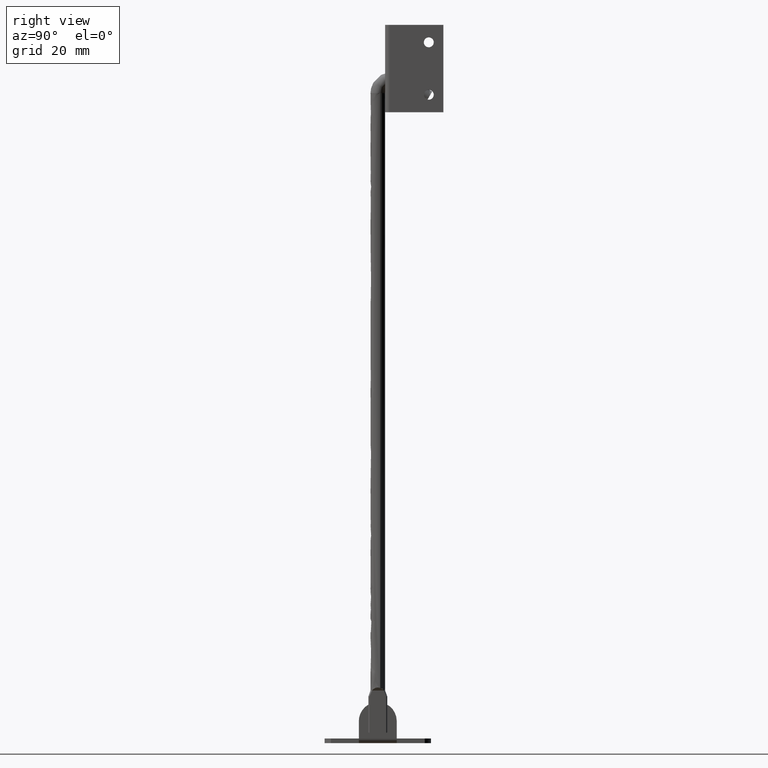
[diagram: clean part render]
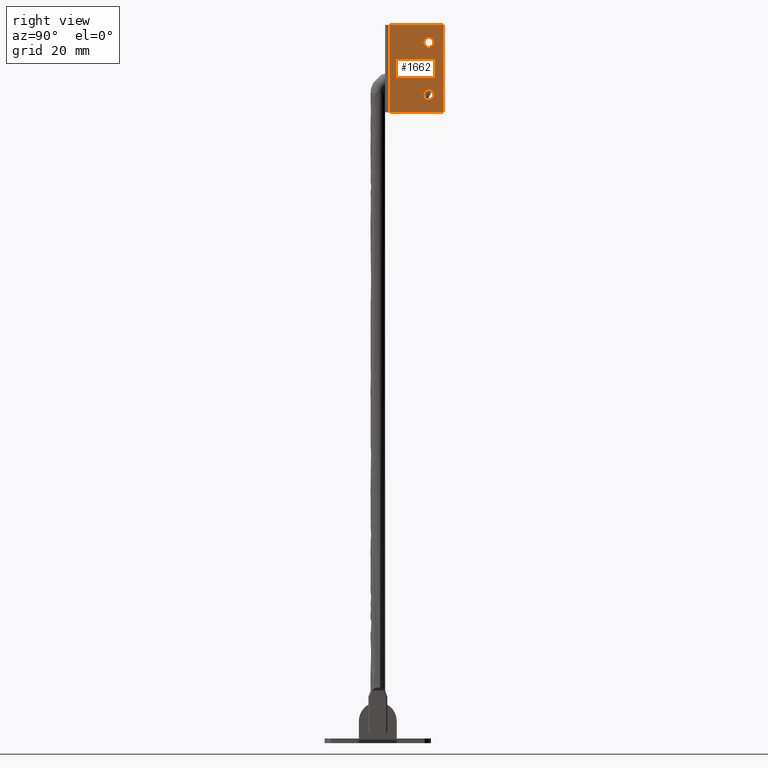
[diagram: same view with one face highlighted and labeled with its STEP entity id]
A machine part, right view. The second image highlights one B-rep face of the part: STEP entity #1662.
In plain terms, the highlighted face is a freeform B-spline surface patch.
Its self-contained STEP definition (entity closure, byte-faithful):
#526=CARTESIAN_POINT('',(17.699996999999950,18.414346348917199,221.229017916967990));
#527=VERTEX_POINT('',#526);
#533=CARTESIAN_POINT('',(17.699996999999950,17.500000000000000,224.362186000000010));
#534=VERTEX_POINT('',#533);
#535=CARTESIAN_POINT('',(17.699996999999950,17.500000000000000,224.362186000000010));
#536=CARTESIAN_POINT('',(17.699996999999946,19.200000000000010,224.362186000000040));
#537=CARTESIAN_POINT('',(17.699996999999950,19.199999999999999,222.662185999999990));
#538=CARTESIAN_POINT('',(17.699996999999946,19.200000000000006,221.730256784865560));
#539=CARTESIAN_POINT('',(17.699996999999950,18.414346348917199,221.229017916967990));
#547=(BOUNDED_CURVE()B_SPLINE_CURVE(2,(#535,#536,#537,#538,#539),.UNSPECIFIED.,.F.,.U.)B_SPLINE_CURVE_WITH_KNOTS((3,2,3),(0.0,0.250000000000000,0.407950112615073),.UNSPECIFIED.)CURVE()GEOMETRIC_REPRESENTATION_ITEM()RATIONAL_B_SPLINE_CURVE((1.0,0.707106781186548,1.0,0.814949932416896,0.863729296947217))REPRESENTATION_ITEM(''));
#548=EDGE_CURVE('',#534,#527,#547,.T.);
#550=CARTESIAN_POINT('',(17.699996999999950,15.805240532740740,222.528805536156510));
#551=VERTEX_POINT('',#550);
#552=CARTESIAN_POINT('',(17.699996999999950,15.805240532740742,222.528805536156540));
#553=CARTESIAN_POINT('',(17.699996999999954,15.800000000000006,222.595392816975700));
#554=CARTESIAN_POINT('',(17.699996999999950,15.800000000000001,222.662185999999990));
#555=CARTESIAN_POINT('',(17.699996999999946,15.799999999999997,224.362186000000040));
#556=CARTESIAN_POINT('',(17.699996999999950,17.500000000000000,224.362186000000010));
#564=(BOUNDED_CURVE()B_SPLINE_CURVE(2,(#552,#553,#554,#555,#556),.UNSPECIFIED.,.F.,.U.)B_SPLINE_CURVE_WITH_KNOTS((3,2,3),(0.736331300408997,0.750000000000000,1.0),.UNSPECIFIED.)CURVE()GEOMETRIC_REPRESENTATION_ITEM()RATIONAL_B_SPLINE_CURVE((0.969723355704825,0.983986122319188,1.0,0.707106781186548,1.0))REPRESENTATION_ITEM(''));
#565=EDGE_CURVE('',#551,#534,#564,.T.);
#669=CARTESIAN_POINT('',(17.699996999999950,17.500000000000000,220.962186000000000));
#670=VERTEX_POINT('',#669);
#671=CARTESIAN_POINT('',(17.699996999999950,17.500000000000000,220.962186000000000));
#672=CARTESIAN_POINT('',(17.699996999999954,15.928536166238716,220.962186000000090));
#673=CARTESIAN_POINT('',(17.699996999999957,15.805240532740743,222.528805536156510));
#681=(BOUNDED_CURVE()B_SPLINE_CURVE(2,(#671,#672,#673),.UNSPECIFIED.,.F.,.U.)B_SPLINE_CURVE_WITH_KNOTS((3,3),(0.500000000000000,0.736331300408996),.UNSPECIFIED.)CURVE()GEOMETRIC_REPRESENTATION_ITEM()RATIONAL_B_SPLINE_CURVE((1.0,0.723120658867360,0.969723355704823))REPRESENTATION_ITEM(''));
#682=EDGE_CURVE('',#670,#551,#681,.T.);
#684=CARTESIAN_POINT('',(17.699996999999950,18.414346348917199,221.229017916967990));
#685=CARTESIAN_POINT('',(17.699996999999950,17.996107694220242,220.962185999999950));
#686=CARTESIAN_POINT('',(17.699996999999950,17.500000000000000,220.962186000000000));
#694=(BOUNDED_CURVE()B_SPLINE_CURVE(2,(#684,#685,#686),.UNSPECIFIED.,.F.,.U.)B_SPLINE_CURVE_WITH_KNOTS((3,3),(0.407950112615073,0.500000000000000),.UNSPECIFIED.)CURVE()GEOMETRIC_REPRESENTATION_ITEM()RATIONAL_B_SPLINE_CURVE((0.863729296947217,0.892156848769652,1.0))REPRESENTATION_ITEM(''));
#695=EDGE_CURVE('',#527,#670,#694,.T.);
#870=CARTESIAN_POINT('',(17.699996999999950,18.414346348917199,239.229017916967900));
#871=VERTEX_POINT('',#870);
#877=CARTESIAN_POINT('',(17.699996999999950,17.500000000000000,242.362186000000010));
#878=VERTEX_POINT('',#877);
#879=CARTESIAN_POINT('',(17.699996999999950,17.500000000000000,242.362186000000010));
#880=CARTESIAN_POINT('',(17.699996999999946,19.200000000000010,242.362186000000090));
#881=CARTESIAN_POINT('',(17.699996999999950,19.199999999999999,240.662185999999990));
#882=CARTESIAN_POINT('',(17.699996999999946,19.200000000000003,239.730256784865470));
#883=CARTESIAN_POINT('',(17.699996999999954,18.414346348917203,239.229017916967960));
#891=(BOUNDED_CURVE()B_SPLINE_CURVE(2,(#879,#880,#881,#882,#883),.UNSPECIFIED.,.F.,.U.)B_SPLINE_CURVE_WITH_KNOTS((3,2,3),(0.0,0.250000000000000,0.407950112615072),.UNSPECIFIED.)CURVE()GEOMETRIC_REPRESENTATION_ITEM()RATIONAL_B_SPLINE_CURVE((1.0,0.707106781186548,1.0,0.814949932416897,0.863729296947217))REPRESENTATION_ITEM(''));
#892=EDGE_CURVE('',#878,#871,#891,.T.);
#894=CARTESIAN_POINT('',(17.699996999999950,15.805240532740740,240.528805536156510));
#895=VERTEX_POINT('',#894);
#896=CARTESIAN_POINT('',(17.699996999999950,15.805240532740742,240.528805536156540));
#897=CARTESIAN_POINT('',(17.699996999999957,15.800000000000001,240.595392816975700));
#898=CARTESIAN_POINT('',(17.699996999999950,15.800000000000001,240.662185999999990));
#899=CARTESIAN_POINT('',(17.699996999999946,15.799999999999997,242.362186000000090));
#900=CARTESIAN_POINT('',(17.699996999999950,17.500000000000000,242.362186000000010));
#908=(BOUNDED_CURVE()B_SPLINE_CURVE(2,(#896,#897,#898,#899,#900),.UNSPECIFIED.,.F.,.U.)B_SPLINE_CURVE_WITH_KNOTS((3,2,3),(0.736331300408995,0.750000000000000,1.0),.UNSPECIFIED.)CURVE()GEOMETRIC_REPRESENTATION_ITEM()RATIONAL_B_SPLINE_CURVE((0.969723355704820,0.983986122319185,1.0,0.707106781186548,1.0))REPRESENTATION_ITEM(''));
#909=EDGE_CURVE('',#895,#878,#908,.T.);
#1013=CARTESIAN_POINT('',(17.699996999999950,17.500000000000000,238.962186000000000));
#1014=VERTEX_POINT('',#1013);
#1015=CARTESIAN_POINT('',(17.699996999999950,17.500000000000000,238.962186000000000));
#1016=CARTESIAN_POINT('',(17.699996999999946,15.928536166238741,238.962186000000060));
#1017=CARTESIAN_POINT('',(17.699996999999954,15.805240532740738,240.528805536156540));
#1025=(BOUNDED_CURVE()B_SPLINE_CURVE(2,(#1015,#1016,#1017),.UNSPECIFIED.,.F.,.U.)B_SPLINE_CURVE_WITH_KNOTS((3,3),(0.500000000000000,0.736331300408994),.UNSPECIFIED.)CURVE()GEOMETRIC_REPRESENTATION_ITEM()RATIONAL_B_SPLINE_CURVE((1.0,0.723120658867363,0.969723355704818))REPRESENTATION_ITEM(''));
#1026=EDGE_CURVE('',#1014,#895,#1025,.T.);
#1028=CARTESIAN_POINT('',(17.699996999999946,18.414346348917199,239.229017916967900));
#1029=CARTESIAN_POINT('',(17.699996999999957,17.996107694220250,238.962185999999920));
#1030=CARTESIAN_POINT('',(17.699996999999950,17.500000000000000,238.962186000000000));
#1038=(BOUNDED_CURVE()B_SPLINE_CURVE(2,(#1028,#1029,#1030),.UNSPECIFIED.,.F.,.U.)B_SPLINE_CURVE_WITH_KNOTS((3,3),(0.407950112615073,0.500000000000000),.UNSPECIFIED.)CURVE()GEOMETRIC_REPRESENTATION_ITEM()RATIONAL_B_SPLINE_CURVE((0.863729296947217,0.892156848769651,1.0))REPRESENTATION_ITEM(''));
#1039=EDGE_CURVE('',#871,#1014,#1038,.T.);
#1362=CARTESIAN_POINT('',(17.699996999999900,4.099999999999890,216.662185999999990));
#1363=VERTEX_POINT('',#1362);
#1377=CARTESIAN_POINT('',(17.699996999999900,4.099999999999890,246.662185999999990));
#1378=VERTEX_POINT('',#1377);
#1379=CARTESIAN_POINT('',(17.699996999999900,4.099999999999890,216.662185999999990));
#1380=CARTESIAN_POINT('',(17.699996999999900,4.099999999999890,246.662185999999990));
#1381=QUASI_UNIFORM_CURVE('',1,(#1379,#1380),.UNSPECIFIED.,.F.,.U.);
#1382=EDGE_CURVE('',#1363,#1378,#1381,.T.);
#1412=CARTESIAN_POINT('',(17.699996999999900,22.500000000000000,246.662185999999990));
#1413=VERTEX_POINT('',#1412);
#1414=CARTESIAN_POINT('',(17.699996999999900,22.500000000000000,246.662185999999990));
#1415=CARTESIAN_POINT('',(17.699996999999900,4.099999999999890,246.662185999999990));
#1416=QUASI_UNIFORM_CURVE('',1,(#1414,#1415),.UNSPECIFIED.,.F.,.U.);
#1417=EDGE_CURVE('',#1413,#1378,#1416,.T.);
#1515=CARTESIAN_POINT('',(17.699996999999900,22.500000000000000,216.662185999999990));
#1516=VERTEX_POINT('',#1515);
#1522=CARTESIAN_POINT('',(17.699996999999900,22.500000000000000,216.662185999999990));
#1523=CARTESIAN_POINT('',(17.699996999999900,4.099999999999890,216.662185999999990));
#1524=QUASI_UNIFORM_CURVE('',1,(#1522,#1523),.UNSPECIFIED.,.F.,.U.);
#1525=EDGE_CURVE('',#1516,#1363,#1524,.T.);
#1625=CARTESIAN_POINT('',(17.699996999999900,22.500000000000000,216.662185999999990));
#1626=CARTESIAN_POINT('',(17.699996999999900,22.500000000000000,246.662185999999990));
#1627=QUASI_UNIFORM_CURVE('',1,(#1625,#1626),.UNSPECIFIED.,.F.,.U.);
#1628=EDGE_CURVE('',#1516,#1413,#1627,.T.);
#1639=CARTESIAN_POINT('',(17.699996999999900,23.419079964337239,248.160685660235710));
#1640=CARTESIAN_POINT('',(17.699996999999900,3.180919542136198,248.160685660235710));
#1641=CARTESIAN_POINT('',(17.699996999999900,23.419079964337239,215.163685266880800));
#1642=CARTESIAN_POINT('',(17.699996999999900,3.180919542136198,215.163685266880800));
#1643=B_SPLINE_SURFACE_WITH_KNOTS('',1,1,((#1639,#1641),(#1640,#1642)),.UNSPECIFIED.,.F.,.F.,.U.,(2,2),(2,2),(0.0,20.238160422201041),(0.0,32.997000393354938),.UNSPECIFIED.);
#1644=ORIENTED_EDGE('',*,*,#1525,.F.);
#1645=ORIENTED_EDGE('',*,*,#1628,.T.);
#1646=ORIENTED_EDGE('',*,*,#1417,.T.);
#1647=ORIENTED_EDGE('',*,*,#1382,.F.);
#1648=EDGE_LOOP('',(#1644,#1645,#1646,#1647));
#1649=FACE_OUTER_BOUND('',#1648,.T.);
#1650=ORIENTED_EDGE('',*,*,#1026,.T.);
#1651=ORIENTED_EDGE('',*,*,#909,.T.);
#1652=ORIENTED_EDGE('',*,*,#892,.T.);
#1653=ORIENTED_EDGE('',*,*,#1039,.T.);
#1654=EDGE_LOOP('',(#1650,#1651,#1652,#1653));
#1655=FACE_BOUND('',#1654,.T.);
#1656=ORIENTED_EDGE('',*,*,#682,.T.);
#1657=ORIENTED_EDGE('',*,*,#565,.T.);
#1658=ORIENTED_EDGE('',*,*,#548,.T.);
#1659=ORIENTED_EDGE('',*,*,#695,.T.);
#1660=EDGE_LOOP('',(#1656,#1657,#1658,#1659));
#1661=FACE_BOUND('',#1660,.T.);
#1662=ADVANCED_FACE('',(#1649,#1655,#1661),#1643,.T.);